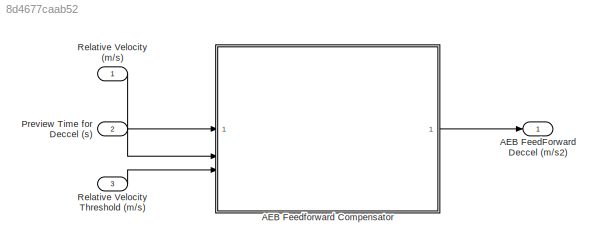
MODEL slx_8d4677caab52
KIND model
CONFIG AbsTol = auto
CONFIG EnableMultiTasking = off
CONFIG FixedStep = 0.05
CONFIG MaxStep = auto
CONFIG MinStep = auto
CONFIG RelTol = 1e-3
CONFIG SampleTimeConstraint = Unconstrained
CONFIG SolverName = FixedStepDiscrete
CONFIG StartTime = 0.0
CONFIG StopTime = 10.0
BLOCK [Outport] AEB FeedForward Deccel (m//s2)
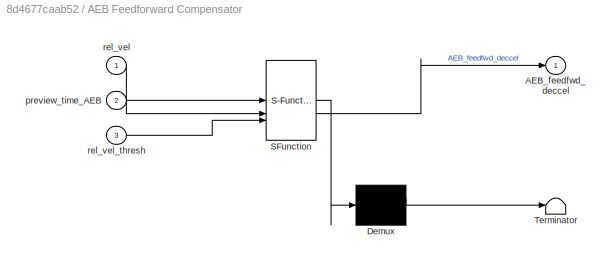
BLOCK [SubSystem] AEB Feedforward Compensator
  ErrorFcn = Stateflow.Translate.translate
  PermitHierarchicalResolution = ExplicitOnly
  SFBlockType = MATLAB Function
  TreatAsAtomicUnit = on
BLOCK [Demux] AEB Feedforward Compensator/ Demux 
  Outputs = 1
BLOCK [S-Function] AEB Feedforward Compensator/ SFunction 
  EnableBusSupport = on
  FunctionName = sf_sfun
  PortCounts = [3 2]
  SFcnIsStateOwnerBlock = off
  SFunctionDeploymentMode = off
  Tag = Stateflow S-Function 2
BLOCK [Terminator] AEB Feedforward Compensator/ Terminator 
BLOCK [Outport] AEB Feedforward Compensator/AEB_feedfwd_deccel
BLOCK [Inport] AEB Feedforward Compensator/preview_time_AEB
  Port = 2
BLOCK [Inport] AEB Feedforward Compensator/rel_vel
BLOCK [Inport] AEB Feedforward Compensator/rel_vel_thresh
  Port = 3
BLOCK [Inport] Preview Time for Deccel (s)
  Port = 2
BLOCK [Inport] Relative Velocity (m//s)
BLOCK [Inport] Relative Velocity Threshold (m//s)
  Port = 3
LINE AEB Feedforward Compensator:1 -> AEB FeedForward Deccel (m//s2):1
LINE Preview Time for Deccel (s):1 -> AEB Feedforward Compensator:2
LINE Relative Velocity (m//s):1 -> AEB Feedforward Compensator:1
LINE Relative Velocity Threshold (m//s):1 -> AEB Feedforward Compensator:3
CHART AEB Feedforward Compensator states=1 transitions=1
  STATE_LABEL 'eML_blk_kernel()'
  STATE_LABEL 'SCRIPT:\nfunction AEB_feedfwd_deccel = fcn(rel_vel, preview_time_AEB, rel_vel_thresh)\n% This function determines a feedforward decceleration to apply to vehicle\n% in the event that the vehicle approaches a stopped car at high speed,\n% i.e. Automatic Emergency Braking (AEB) event\n% rel_vel is the relative velocity compared to lead vehicle [m/s]; \n% preview_time is the time in [secs] over which the c...<+305ch>'
CHART  states=0 transitions=0
